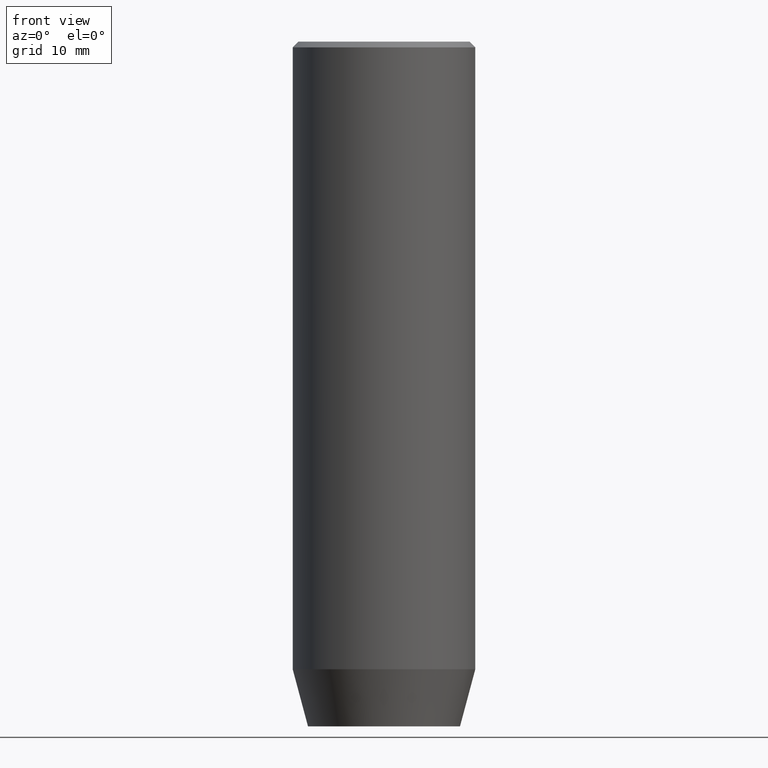
[diagram: clean part render]
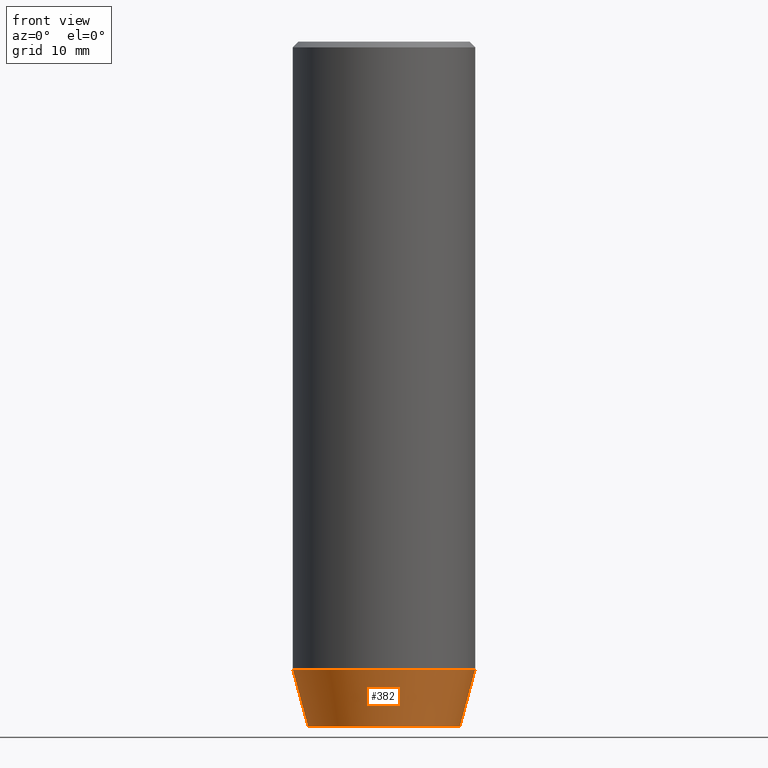
[diagram: same view with one face highlighted and labeled with its STEP entity id]
A machine part, front view. The second image highlights one B-rep face of the part: STEP entity #382.
In plain terms, the highlighted conical surface has half-angle 15 deg.
Its self-contained STEP definition (entity closure, byte-faithful):
#4 = ORIENTED_EDGE ( 'NONE', *, *, #541, .T. ) ;
#22 = AXIS2_PLACEMENT_3D ( 'NONE', #384, #195, #423 ) ;
#78 = ORIENTED_EDGE ( 'NONE', *, *, #177, .F. ) ;
#88 = VERTEX_POINT ( 'NONE', #575 ) ;
#91 = DIRECTION ( 'NONE',  ( -0.000000000000000000, -0.000000000000000000, 1.000000000000000000 ) ) ;
#109 = VECTOR ( 'NONE', #494, 1000.000000000000114 ) ;
#128 = ORIENTED_EDGE ( 'NONE', *, *, #551, .T. ) ;
#139 = VERTEX_POINT ( 'NONE', #397 ) ;
#142 = CARTESIAN_POINT ( 'NONE',  ( 8.000000000000000000, 0.000000000000000000, -55.00000000000000000 ) ) ;
#177 = EDGE_CURVE ( 'NONE', #88, #411, #544, .T. ) ;
#195 = DIRECTION ( 'NONE',  ( -0.000000000000000000, -0.000000000000000000, 1.000000000000000000 ) ) ;
#202 = FACE_OUTER_BOUND ( 'NONE', #224, .T. ) ;
#217 = CARTESIAN_POINT ( 'NONE',  ( 6.660254037844384634, 0.000000000000000000, -60.00000000000000000 ) ) ;
#224 = EDGE_LOOP ( 'NONE', ( #78, #4, #128, #241 ) ) ;
#241 = ORIENTED_EDGE ( 'NONE', *, *, #571, .F. ) ;
#247 = VERTEX_POINT ( 'NONE', #217 ) ;
#251 = CARTESIAN_POINT ( 'NONE',  ( -8.000000000000000000, 9.797174393178825657E-16, -55.00000000000000000 ) ) ;
#270 = DIRECTION ( 'NONE',  ( -0.000000000000000000, -0.000000000000000000, 1.000000000000000000 ) ) ;
#282 = CARTESIAN_POINT ( 'NONE',  ( 0.000000000000000000, 0.000000000000000000, -55.00000000000000000 ) ) ;
#302 = CONICAL_SURFACE ( 'NONE', #22, 8.000000000000000000, 0.2617993877991499074 ) ;
#305 = AXIS2_PLACEMENT_3D ( 'NONE', #452, #270, #457 ) ;
#382 = ADVANCED_FACE ( 'NONE', ( #202 ), #302, .T. ) ;
#384 = CARTESIAN_POINT ( 'NONE',  ( 0.000000000000000000, 0.000000000000000000, -55.00000000000000000 ) ) ;
#386 = CIRCLE ( 'NONE', #405, 8.000000000000000000 ) ;
#392 = CIRCLE ( 'NONE', #305, 6.660254037844384634 ) ;
#397 = CARTESIAN_POINT ( 'NONE',  ( 8.000000000000000000, 0.000000000000000000, -55.00000000000000000 ) ) ;
#405 = AXIS2_PLACEMENT_3D ( 'NONE', #282, #91, #451 ) ;
#411 = VERTEX_POINT ( 'NONE', #251 ) ;
#423 = DIRECTION ( 'NONE',  ( 1.000000000000000000, 0.000000000000000000, 0.000000000000000000 ) ) ;
#451 = DIRECTION ( 'NONE',  ( 1.000000000000000000, 0.000000000000000000, 0.000000000000000000 ) ) ;
#452 = CARTESIAN_POINT ( 'NONE',  ( 0.000000000000000000, 0.000000000000000000, -60.00000000000000000 ) ) ;
#457 = DIRECTION ( 'NONE',  ( 1.000000000000000000, 0.000000000000000000, 0.000000000000000000 ) ) ;
#494 = DIRECTION ( 'NONE',  ( -0.2588190451025211836, 3.169619151431770488E-17, 0.9659258262890680902 ) ) ;
#497 = DIRECTION ( 'NONE',  ( 0.2588190451025211836, 0.000000000000000000, 0.9659258262890680902 ) ) ;
#501 = CARTESIAN_POINT ( 'NONE',  ( -8.000000000000000000, 9.797174393178825657E-16, -55.00000000000000000 ) ) ;
#512 = VECTOR ( 'NONE', #497, 1000.000000000000114 ) ;
#537 = LINE ( 'NONE', #142, #512 ) ;
#541 = EDGE_CURVE ( 'NONE', #88, #247, #392, .T. ) ;
#544 = LINE ( 'NONE', #501, #109 ) ;
#551 = EDGE_CURVE ( 'NONE', #247, #139, #537, .T. ) ;
#571 = EDGE_CURVE ( 'NONE', #411, #139, #386, .T. ) ;
#575 = CARTESIAN_POINT ( 'NONE',  ( -6.660254037844384634, 8.976816591066593210E-16, -60.00000000000000000 ) ) ;